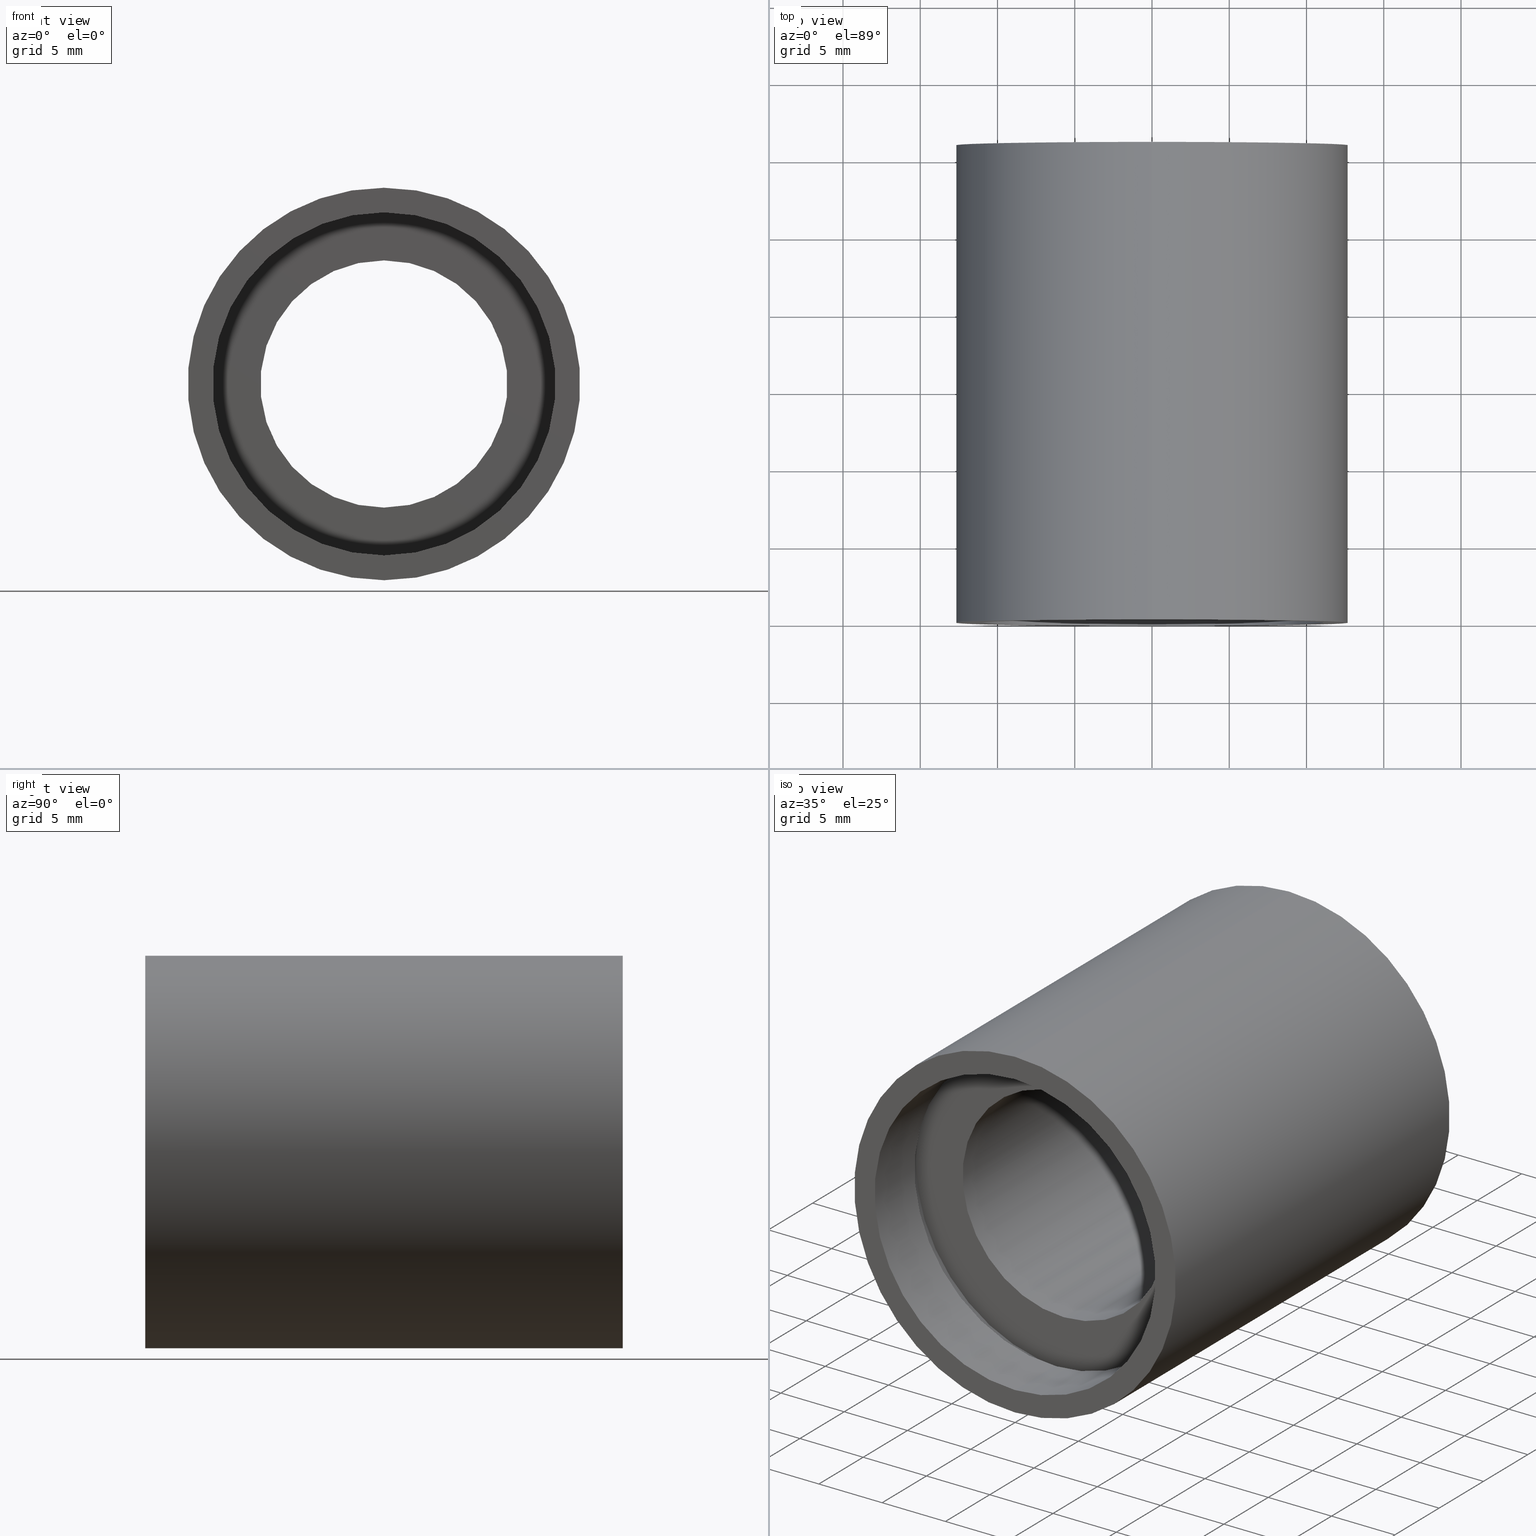
[diagram: canonical four-view strip — front | top / right | iso, engineering-drawing reading convention]
A machine part, canonical four-view strip (front | top / right | iso — engineering-drawing reading convention). The complete STEP part file that produces these views, byte-faithful:
ISO-10303-21;
HEADER;
FILE_DESCRIPTION (( 'STEP AP214' ),
    '1' );
FILE_NAME ('503075.STEP',
    '2019-09-10T05:54:35',
    ( '' ),
    ( '' ),
    'SwSTEP 2.0',
    'SolidWorks 2016',
    '' );
FILE_SCHEMA (( 'AUTOMOTIVE_DESIGN' ));
ENDSEC;

DATA;
#1 = DIRECTION ( 'NONE',  ( -0.0000000000000000000, 1.000000000000000000, -0.0000000000000000000 ) ) ;
#2 = VECTOR ( 'NONE', #29, 1000.000000000000000 ) ;
#3 = FACE_BOUND ( 'NONE', #587, .T. ) ;
#4 =( NAMED_UNIT ( * ) SI_UNIT ( $, .STERADIAN. ) SOLID_ANGLE_UNIT ( ) );
#5 = AXIS2_PLACEMENT_3D ( 'NONE', #8, #202, #201 ) ;
#6 = UNCERTAINTY_MEASURE_WITH_UNIT (LENGTH_MEASURE( 1.000000000000000100E-005 ), #146, 'distance_accuracy_value', 'NONE');
#7 = CARTESIAN_POINT ( 'NONE',  ( 1.420590287010933700E-015, 30.89999999999998400, -11.60000000000003200 ) ) ;
#8 = CARTESIAN_POINT ( 'NONE',  ( 0.0000000000000000000, 5.499999999999976900, 0.0000000000000000000 ) ) ;
#9 = VECTOR ( 'NONE', #421, 1000.000000000000000 ) ;
#10 = PRODUCT_DEFINITION_SHAPE ( 'NONE', 'NONE',  #562 ) ;
#11 = VERTEX_POINT ( 'NONE', #436 ) ;
#12 = DIRECTION ( 'NONE',  ( -0.0000000000000000000, 1.000000000000000000, -0.0000000000000000000 ) ) ;
#13 = AXIS2_PLACEMENT_3D ( 'NONE', #617, #43, #387 ) ;
#14 = VERTEX_POINT ( 'NONE', #394 ) ;
#15 = EDGE_CURVE ( 'NONE', #120, #418, #73, .T. ) ;
#16 = SURFACE_STYLE_USAGE ( .BOTH. , #309 ) ;
#17 = CIRCLE ( 'NONE', #289, 11.10000000000001900 ) ;
#18 = FACE_OUTER_BOUND ( 'NONE', #192, .T. ) ;
#19 = ORIENTED_EDGE ( 'NONE', *, *, #172, .T. ) ;
#20 = CARTESIAN_POINT ( 'NONE',  ( 0.0000000000000000000, 25.39999999999997700, 0.0000000000000000000 ) ) ;
#21 = SURFACE_STYLE_USAGE ( .BOTH. , #363 ) ;
#22 = STYLED_ITEM ( 'NONE', ( #111 ), #140 ) ;
#23 = CIRCLE ( 'NONE', #520, 11.60000000000003200 ) ;
#24 = EDGE_CURVE ( 'NONE', #193, #446, #360, .T. ) ;
#25 = LINE ( 'NONE', #426, #532 ) ;
#26 = EDGE_LOOP ( 'NONE', ( #154, #303 ) ) ;
#27 = ORIENTED_EDGE ( 'NONE', *, *, #461, .F. ) ;
#28 = DIRECTION ( 'NONE',  ( -0.0000000000000000000, 1.000000000000000000, -0.0000000000000000000 ) ) ;
#29 = DIRECTION ( 'NONE',  ( -0.0000000000000000000, 1.000000000000000000, -0.0000000000000000000 ) ) ;
#30 = CARTESIAN_POINT ( 'NONE',  ( 0.0000000000000000000, 161.3761669434274500, 12.70000000000001900 ) ) ;
#31 = ORIENTED_EDGE ( 'NONE', *, *, #408, .F. ) ;
#32 = CARTESIAN_POINT ( 'NONE',  ( 0.0000000000000000000, 161.3761669434274500, 0.0000000000000000000 ) ) ;
#33 = EDGE_LOOP ( 'NONE', ( #354, #132, #494, #181 ) ) ;
#34 = MECHANICAL_DESIGN_GEOMETRIC_PRESENTATION_REPRESENTATION (  '', ( #588 ), #466 ) ;
#35 = ADVANCED_FACE ( 'NONE', ( #273 ), #607, .F. ) ;
#36 = SURFACE_STYLE_USAGE ( .BOTH. , #522 ) ;
#37 = EDGE_LOOP ( 'NONE', ( #62, #430 ) ) ;
#38 = ORIENTED_EDGE ( 'NONE', *, *, #280, .F. ) ;
#39 = CARTESIAN_POINT ( 'NONE',  ( 0.0000000000000000000, 161.3761669434274500, 0.0000000000000000000 ) ) ;
#40 = CLOSED_SHELL ( 'NONE', ( #136, #329, #578, #94, #140, #477, #622, #378, #46, #325, #84, #127, #427, #35, #572, #179, #581, #279 ) ) ;
#41 = DIRECTION ( 'NONE',  ( 0.0000000000000000000, 0.0000000000000000000, 1.000000000000000000 ) ) ;
#42 = STYLED_ITEM ( 'NONE', ( #99 ), #578 ) ;
#43 = DIRECTION ( 'NONE',  ( -0.0000000000000000000, 1.000000000000000000, -0.0000000000000000000 ) ) ;
#44 = EDGE_CURVE ( 'NONE', #446, #193, #23, .T. ) ;
#45 = CIRCLE ( 'NONE', #600, 11.70000000000001500 ) ;
#46 = ADVANCED_FACE ( 'NONE', ( #542, #400 ), #580, .F. ) ;
#47 = DIRECTION ( 'NONE',  ( 0.0000000000000000000, 0.0000000000000000000, 1.000000000000000000 ) ) ;
#48 = DIRECTION ( 'NONE',  ( 0.0000000000000000000, 0.0000000000000000000, 1.000000000000000000 ) ) ;
#49 = ORIENTED_EDGE ( 'NONE', *, *, #480, .F. ) ;
#50 =( NAMED_UNIT ( * ) SI_UNIT ( $, .STERADIAN. ) SOLID_ANGLE_UNIT ( ) );
#51 =( NAMED_UNIT ( * ) PLANE_ANGLE_UNIT ( ) SI_UNIT ( $, .RADIAN. ) );
#52 = DIRECTION ( 'NONE',  ( -0.0000000000000000000, 1.000000000000000000, -0.0000000000000000000 ) ) ;
#53 = ORIENTED_EDGE ( 'NONE', *, *, #118, .T. ) ;
#54 = AXIS2_PLACEMENT_3D ( 'NONE', #157, #357, #115 ) ;
#55 = CIRCLE ( 'NONE', #555, 11.70000000000001700 ) ;
#56 = EDGE_LOOP ( 'NONE', ( #31, #514, #411, #49 ) ) ;
#57 = ORIENTED_EDGE ( 'NONE', *, *, #539, .F. ) ;
#58 = CARTESIAN_POINT ( 'NONE',  ( 0.0000000000000000000, 161.3761669434274500, 0.0000000000000000000 ) ) ;
#59 = DIRECTION ( 'NONE',  ( -0.0000000000000000000, 1.000000000000000000, -0.0000000000000000000 ) ) ;
#60 = DIRECTION ( 'NONE',  ( -0.0000000000000000000, 1.000000000000000000, -0.0000000000000000000 ) ) ;
#61 = CIRCLE ( 'NONE', #397, 11.10000000000002300 ) ;
#62 = ORIENTED_EDGE ( 'NONE', *, *, #252, .F. ) ;
#63 = VECTOR ( 'NONE', #91, 1000.000000000000000 ) ;
#64 = ORIENTED_EDGE ( 'NONE', *, *, #24, .F. ) ;
#65 = AXIS2_PLACEMENT_3D ( 'NONE', #605, #371, #268 ) ;
#66 = VECTOR ( 'NONE', #330, 1000.000000000000000 ) ;
#67 =( NAMED_UNIT ( * ) SI_UNIT ( $, .STERADIAN. ) SOLID_ANGLE_UNIT ( ) );
#68 = VERTEX_POINT ( 'NONE', #478 ) ;
#69 = DIRECTION ( 'NONE',  ( -0.0000000000000000000, 1.000000000000000000, -0.0000000000000000000 ) ) ;
#70 = ORIENTED_EDGE ( 'NONE', *, *, #206, .F. ) ;
#71 = CARTESIAN_POINT ( 'NONE',  ( 0.0000000000000000000, 26.39999999999997700, 0.0000000000000000000 ) ) ;
#72 = CARTESIAN_POINT ( 'NONE',  ( 0.0000000000000000000, 26.39999999999997700, 0.0000000000000000000 ) ) ;
#73 = CIRCLE ( 'NONE', #441, 8.000000000000019500 ) ;
#74 = CARTESIAN_POINT ( 'NONE',  ( 1.555301434917140800E-015, 30.89999999999998400, -12.70000000000001900 ) ) ;
#75 = ORIENTED_EDGE ( 'NONE', *, *, #558, .F. ) ;
#76 = CARTESIAN_POINT ( 'NONE',  ( 0.0000000000000000000, 161.3761669434274500, 11.70000000000001700 ) ) ;
#77 = DIRECTION ( 'NONE',  ( 0.0000000000000000000, 0.0000000000000000000, 1.000000000000000000 ) ) ;
#78 = PRESENTATION_STYLE_ASSIGNMENT (( #423 ) ) ;
#79 = PRESENTATION_LAYER_ASSIGNMENT (  '', '', ( #237 ) ) ;
#80 = CARTESIAN_POINT ( 'NONE',  ( 0.0000000000000000000, -2.775557561562891400E-014, 0.0000000000000000000 ) ) ;
#81 = EDGE_LOOP ( 'NONE', ( #438, #319 ) ) ;
#82 = DIRECTION ( 'NONE',  ( 0.0000000000000000000, -0.0000000000000000000, -1.000000000000000000 ) ) ;
#83 = ORIENTED_EDGE ( 'NONE', *, *, #592, .F. ) ;
#84 = ADVANCED_FACE ( 'NONE', ( #524, #415 ), #281, .F. ) ;
#85 = PRESENTATION_LAYER_ASSIGNMENT (  '', '', ( #588 ) ) ;
#86 = DIRECTION ( 'NONE',  ( 0.0000000000000000000, 0.0000000000000000000, 1.000000000000000000 ) ) ;
#87 = EDGE_CURVE ( 'NONE', #457, #143, #333, .T. ) ;
#88 = COLOUR_RGB ( '',1.000000000000000000, 1.000000000000000000, 1.000000000000000000 ) ;
#89 = CARTESIAN_POINT ( 'NONE',  ( 11.70000000000001700, 5.499999999999987600, 0.0000000000000000000 ) ) ;
#90 = ORIENTED_EDGE ( 'NONE', *, *, #210, .F. ) ;
#91 = DIRECTION ( 'NONE',  ( -0.0000000000000000000, 1.000000000000000000, -0.0000000000000000000 ) ) ;
#92 = ORIENTED_EDGE ( 'NONE', *, *, #523, .T. ) ;
#93 = DIRECTION ( 'NONE',  ( 0.0000000000000000000, 0.0000000000000000000, 1.000000000000000000 ) ) ;
#94 = ADVANCED_FACE ( 'NONE', ( #434 ), #417, .F. ) ;
#95 =( LENGTH_UNIT ( ) NAMED_UNIT ( * ) SI_UNIT ( .MILLI., .METRE. ) );
#96 = DIRECTION ( 'NONE',  ( -0.0000000000000000000, 1.000000000000000000, -0.0000000000000000000 ) ) ;
#97 = CYLINDRICAL_SURFACE ( 'NONE', #147, 11.70000000000001700 ) ;
#98 =( GEOMETRIC_REPRESENTATION_CONTEXT ( 3 ) GLOBAL_UNCERTAINTY_ASSIGNED_CONTEXT ( ( #6 ) ) GLOBAL_UNIT_ASSIGNED_CONTEXT ( ( #146, #51, #398 ) ) REPRESENTATION_CONTEXT ( 'NONE', 'WORKASPACE' ) );
#99 = PRESENTATION_STYLE_ASSIGNMENT (( #36 ) ) ;
#100 = PLANE ( 'NONE',  #448 ) ;
#101 = SURFACE_SIDE_STYLE ('',( #563 ) ) ;
#102 = ORIENTED_EDGE ( 'NONE', *, *, #523, .F. ) ;
#103 = DIRECTION ( 'NONE',  ( 0.0000000000000000000, 0.0000000000000000000, 1.000000000000000000 ) ) ;
#104 = DIRECTION ( 'NONE',  ( 0.0000000000000000000, 0.0000000000000000000, 1.000000000000000000 ) ) ;
#105 = CARTESIAN_POINT ( 'NONE',  ( 0.0000000000000000000, 5.499999999999976900, 11.70000000000001700 ) ) ;
#106 = AXIS2_PLACEMENT_3D ( 'NONE', #222, #313, #266 ) ;
#107 = EDGE_LOOP ( 'NONE', ( #526, #255, #453, #493 ) ) ;
#108 = DIRECTION ( 'NONE',  ( -0.0000000000000000000, 1.000000000000000000, -0.0000000000000000000 ) ) ;
#109 = EDGE_CURVE ( 'NONE', #143, #457, #479, .T. ) ;
#110 = CIRCLE ( 'NONE', #171, 11.70000000000001500 ) ;
#111 = PRESENTATION_STYLE_ASSIGNMENT (( #488 ) ) ;
#112 = DIRECTION ( 'NONE',  ( -0.0000000000000000000, 1.000000000000000000, -0.0000000000000000000 ) ) ;
#113 = EDGE_LOOP ( 'NONE', ( #190, #64 ) ) ;
#114 = FILL_AREA_STYLE ('',( #259 ) ) ;
#115 = DIRECTION ( 'NONE',  ( 0.0000000000000000000, 0.0000000000000000000, 1.000000000000000000 ) ) ;
#116 = MECHANICAL_DESIGN_GEOMETRIC_PRESENTATION_REPRESENTATION (  '', ( #22 ), #267 ) ;
#117 = FACE_OUTER_BOUND ( 'NONE', #81, .T. ) ;
#118 = EDGE_CURVE ( 'NONE', #574, #271, #55, .T. ) ;
#119 = DIRECTION ( 'NONE',  ( 0.0000000000000000000, 0.0000000000000000000, 1.000000000000000000 ) ) ;
#120 = VERTEX_POINT ( 'NONE', #245 ) ;
#121 = ORIENTED_EDGE ( 'NONE', *, *, #618, .F. ) ;
#122 = CARTESIAN_POINT ( 'NONE',  ( 1.420590287010933900E-015, 161.3761669434274500, -11.60000000000003300 ) ) ;
#123 = CARTESIAN_POINT ( 'NONE',  ( 0.0000000000000000000, 4.499999999999976000, 0.0000000000000000000 ) ) ;
#124 = PRESENTATION_LAYER_ASSIGNMENT (  '', '', ( #275 ) ) ;
#125 = CARTESIAN_POINT ( 'NONE',  ( 1.359357947053564500E-015, 161.3761669434274500, -11.10000000000002100 ) ) ;
#126 = CARTESIAN_POINT ( 'NONE',  ( 0.0000000000000000000, 161.3761669434274500, 11.10000000000002100 ) ) ;
#127 = ADVANCED_FACE ( 'NONE', ( #543 ), #276, .F. ) ;
#128 = SURFACE_STYLE_FILL_AREA ( #591 ) ;
#129 =( NAMED_UNIT ( * ) SI_UNIT ( $, .STERADIAN. ) SOLID_ANGLE_UNIT ( ) );
#130 = LINE ( 'NONE', #366, #582 ) ;
#131 = VERTEX_POINT ( 'NONE', #345 ) ;
#132 = ORIENTED_EDGE ( 'NONE', *, *, #326, .T. ) ;
#133 = EDGE_LOOP ( 'NONE', ( #424, #534 ) ) ;
#134 = PRESENTATION_LAYER_ASSIGNMENT (  '', '', ( #42 ) ) ;
#135 = PLANE ( 'NONE',  #405 ) ;
#136 = ADVANCED_FACE ( 'NONE', ( #301 ), #341, .F. ) ;
#137 = DIRECTION ( 'NONE',  ( 0.0000000000000000000, 0.0000000000000000000, 1.000000000000000000 ) ) ;
#138 = DIRECTION ( 'NONE',  ( -0.0000000000000000000, 1.000000000000000000, -0.0000000000000000000 ) ) ;
#139 = CYLINDRICAL_SURFACE ( 'NONE', #513, 12.70000000000001900 ) ;
#140 = ADVANCED_FACE ( 'NONE', ( #211 ), #229, .F. ) ;
#141 = CIRCLE ( 'NONE', #335, 12.70000000000001900 ) ;
#142 = DIRECTION ( 'NONE',  ( 0.0000000000000000000, -0.0000000000000000000, -1.000000000000000000 ) ) ;
#143 = VERTEX_POINT ( 'NONE', #586 ) ;
#144 = SURFACE_SIDE_STYLE ('',( #608 ) ) ;
#145 =( NAMED_UNIT ( * ) SI_UNIT ( $, .STERADIAN. ) SOLID_ANGLE_UNIT ( ) );
#146 =( LENGTH_UNIT ( ) NAMED_UNIT ( * ) SI_UNIT ( .MILLI., .METRE. ) );
#147 = AXIS2_PLACEMENT_3D ( 'NONE', #403, #349, #298 ) ;
#148 = MECHANICAL_DESIGN_GEOMETRIC_PRESENTATION_REPRESENTATION (  '', ( #471 ), #545 ) ;
#149 = PRESENTATION_STYLE_ASSIGNMENT (( #388 ) ) ;
#150 = FACE_OUTER_BOUND ( 'NONE', #312, .T. ) ;
#151 = PRESENTATION_STYLE_ASSIGNMENT (( #247 ) ) ;
#152 = CARTESIAN_POINT ( 'NONE',  ( 1.432836755002405300E-015, 161.3761669434274500, -11.70000000000001500 ) ) ;
#153 = ORIENTED_EDGE ( 'NONE', *, *, #172, .F. ) ;
#154 = ORIENTED_EDGE ( 'NONE', *, *, #315, .T. ) ;
#155 = DIRECTION ( 'NONE',  ( 0.0000000000000000000, 0.0000000000000000000, 1.000000000000000000 ) ) ;
#156 = VECTOR ( 'NONE', #28, 1000.000000000000000 ) ;
#157 = CARTESIAN_POINT ( 'NONE',  ( 0.0000000000000000000, -2.775557561562891400E-014, 0.0000000000000000000 ) ) ;
#158 = VECTOR ( 'NONE', #379, 1000.000000000000000 ) ;
#159 = UNCERTAINTY_MEASURE_WITH_UNIT (LENGTH_MEASURE( 1.000000000000000100E-005 ), #492, 'distance_accuracy_value', 'NONE');
#160 = EDGE_LOOP ( 'NONE', ( #27, #121, #465, #621 ) ) ;
#161 = VERTEX_POINT ( 'NONE', #347 ) ;
#162 = DIRECTION ( 'NONE',  ( -0.0000000000000000000, 1.000000000000000000, -0.0000000000000000000 ) ) ;
#163 = AXIS2_PLACEMENT_3D ( 'NONE', #80, #576, #86 ) ;
#164 = SURFACE_SIDE_STYLE ('',( #212 ) ) ;
#165 = DIRECTION ( 'NONE',  ( 0.0000000000000000000, 0.0000000000000000000, 1.000000000000000000 ) ) ;
#166 = COLOUR_RGB ( '',1.000000000000000000, 1.000000000000000000, 1.000000000000000000 ) ;
#167 = ORIENTED_EDGE ( 'NONE', *, *, #467, .T. ) ;
#168 = EDGE_LOOP ( 'NONE', ( #75, #258, #557, #19 ) ) ;
#169 =( LENGTH_UNIT ( ) NAMED_UNIT ( * ) SI_UNIT ( .MILLI., .METRE. ) );
#170 = CARTESIAN_POINT ( 'NONE',  ( 0.0000000000000000000, 5.499999999999976900, 8.000000000000019500 ) ) ;
#171 = AXIS2_PLACEMENT_3D ( 'NONE', #506, #505, #208 ) ;
#172 = EDGE_CURVE ( 'NONE', #535, #68, #407, .T. ) ;
#173 = DIRECTION ( 'NONE',  ( -0.0000000000000000000, 1.000000000000000000, -0.0000000000000000000 ) ) ;
#174 = ORIENTED_EDGE ( 'NONE', *, *, #420, .F. ) ;
#175 =( NAMED_UNIT ( * ) PLANE_ANGLE_UNIT ( ) SI_UNIT ( $, .RADIAN. ) );
#176 = EDGE_CURVE ( 'NONE', #457, #120, #501, .T. ) ;
#177 = FILL_AREA_STYLE ('',( #615 ) ) ;
#178 = CIRCLE ( 'NONE', #163, 11.10000000000002300 ) ;
#179 = ADVANCED_FACE ( 'NONE', ( #373 ), #97, .F. ) ;
#180 = CARTESIAN_POINT ( 'NONE',  ( 0.0000000000000000000, -2.775557561562891400E-014, 11.10000000000002300 ) ) ;
#181 = ORIENTED_EDGE ( 'NONE', *, *, #467, .F. ) ;
#182 = ORIENTED_EDGE ( 'NONE', *, *, #384, .T. ) ;
#183 =( GEOMETRIC_REPRESENTATION_CONTEXT ( 3 ) GLOBAL_UNCERTAINTY_ASSIGNED_CONTEXT ( ( #270 ) ) GLOBAL_UNIT_ASSIGNED_CONTEXT ( ( #590, #197, #50 ) ) REPRESENTATION_CONTEXT ( 'NONE', 'WORKASPACE' ) );
#184 = AXIS2_PLACEMENT_3D ( 'NONE', #498, #409, #553 ) ;
#185 = DIRECTION ( 'NONE',  ( 0.0000000000000000000, 0.0000000000000000000, 1.000000000000000000 ) ) ;
#186 = DIRECTION ( 'NONE',  ( 0.0000000000000000000, 0.0000000000000000000, 1.000000000000000000 ) ) ;
#187 = DIRECTION ( 'NONE',  ( 0.0000000000000000000, 0.0000000000000000000, 1.000000000000000000 ) ) ;
#188 = CARTESIAN_POINT ( 'NONE',  ( 1.432836755002405300E-015, 26.39999999999997700, -11.70000000000001500 ) ) ;
#189 = CARTESIAN_POINT ( 'NONE',  ( 0.0000000000000000000, 30.89999999999998400, 0.0000000000000000000 ) ) ;
#190 = ORIENTED_EDGE ( 'NONE', *, *, #44, .F. ) ;
#191 = CARTESIAN_POINT ( 'NONE',  ( 1.555301434917140800E-015, -2.775557561562891400E-014, -12.70000000000001900 ) ) ;
#192 = EDGE_LOOP ( 'NONE', ( #38, #204 ) ) ;
#193 = VERTEX_POINT ( 'NONE', #7 ) ;
#194 = FILL_AREA_STYLE ('',( #585 ) ) ;
#195 = CIRCLE ( 'NONE', #13, 11.70000000000001700 ) ;
#196 = MECHANICAL_DESIGN_GEOMETRIC_PRESENTATION_REPRESENTATION (  '', ( #42 ), #410 ) ;
#197 =( NAMED_UNIT ( * ) PLANE_ANGLE_UNIT ( ) SI_UNIT ( $, .RADIAN. ) );
#198 =( NAMED_UNIT ( * ) SI_UNIT ( $, .STERADIAN. ) SOLID_ANGLE_UNIT ( ) );
#199 = EDGE_LOOP ( 'NONE', ( #596, #296, #402, #311 ) ) ;
#200 = DIRECTION ( 'NONE',  ( -0.0000000000000000000, 1.000000000000000000, -0.0000000000000000000 ) ) ;
#201 = DIRECTION ( 'NONE',  ( 0.0000000000000000000, 0.0000000000000000000, 1.000000000000000000 ) ) ;
#202 = DIRECTION ( 'NONE',  ( -0.0000000000000000000, 1.000000000000000000, -0.0000000000000000000 ) ) ;
#203 = AXIS2_PLACEMENT_3D ( 'NONE', #261, #597, #508 ) ;
#204 = ORIENTED_EDGE ( 'NONE', *, *, #598, .F. ) ;
#205 = CIRCLE ( 'NONE', #433, 11.60000000000003300 ) ;
#206 = EDGE_CURVE ( 'NONE', #131, #559, #485, .T. ) ;
#207 = EDGE_LOOP ( 'NONE', ( #70, #238, #231, #215 ) ) ;
#208 = DIRECTION ( 'NONE',  ( 0.0000000000000000000, 0.0000000000000000000, 1.000000000000000000 ) ) ;
#209 = DIRECTION ( 'NONE',  ( 0.0000000000000000000, 0.0000000000000000000, 1.000000000000000000 ) ) ;
#210 = EDGE_CURVE ( 'NONE', #367, #565, #257, .T. ) ;
#211 = FACE_OUTER_BOUND ( 'NONE', #56, .T. ) ;
#212 = SURFACE_STYLE_FILL_AREA ( #114 ) ;
#213 = FILL_AREA_STYLE ('',( #361 ) ) ;
#214 = ORIENTED_EDGE ( 'NONE', *, *, #384, .F. ) ;
#215 = ORIENTED_EDGE ( 'NONE', *, *, #252, .T. ) ;
#216 = FILL_AREA_STYLE ('',( #550 ) ) ;
#217 =( LENGTH_UNIT ( ) NAMED_UNIT ( * ) SI_UNIT ( .MILLI., .METRE. ) );
#218 =( GEOMETRIC_REPRESENTATION_CONTEXT ( 3 ) GLOBAL_UNCERTAINTY_ASSIGNED_CONTEXT ( ( #549 ) ) GLOBAL_UNIT_ASSIGNED_CONTEXT ( ( #217, #355, #406 ) ) REPRESENTATION_CONTEXT ( 'NONE', 'WORKASPACE' ) );
#219 = EDGE_CURVE ( 'NONE', #418, #120, #570, .T. ) ;
#220 = CARTESIAN_POINT ( 'NONE',  ( 0.0000000000000000000, 4.499999999999976000, 11.70000000000001700 ) ) ;
#221 = CIRCLE ( 'NONE', #419, 11.60000000000003300 ) ;
#222 = CARTESIAN_POINT ( 'NONE',  ( 0.0000000000000000000, 161.3761669434274500, 0.0000000000000000000 ) ) ;
#223 = ORIENTED_EDGE ( 'NONE', *, *, #598, .T. ) ;
#224 = CARTESIAN_POINT ( 'NONE',  ( 9.797174393178849300E-016, 25.39999999999997700, -8.000000000000019500 ) ) ;
#225 = CIRCLE ( 'NONE', #575, 11.70000000000001500 ) ;
#226 = MECHANICAL_DESIGN_GEOMETRIC_PRESENTATION_REPRESENTATION (  '', ( #237 ), #455 ) ;
#227 = DIRECTION ( 'NONE',  ( 0.0000000000000000000, 0.0000000000000000000, 1.000000000000000000 ) ) ;
#228 = SURFACE_STYLE_FILL_AREA ( #213 ) ;
#229 = CYLINDRICAL_SURFACE ( 'NONE', #428, 11.60000000000003300 ) ;
#230 = DIRECTION ( 'NONE',  ( 0.0000000000000000000, 0.0000000000000000000, 1.000000000000000000 ) ) ;
#231 = ORIENTED_EDGE ( 'NONE', *, *, #539, .T. ) ;
#232 = MECHANICAL_DESIGN_GEOMETRIC_PRESENTATION_REPRESENTATION (  '', ( #275 ), #314 ) ;
#233 = EDGE_LOOP ( 'NONE', ( #318, #223, #167, #284 ) ) ;
#234 = DIRECTION ( 'NONE',  ( 0.0000000000000000000, 0.0000000000000000000, 1.000000000000000000 ) ) ;
#235 = DIRECTION ( 'NONE',  ( -0.0000000000000000000, 1.000000000000000000, -0.0000000000000000000 ) ) ;
#236 = SURFACE_SIDE_STYLE ('',( #382 ) ) ;
#237 = STYLED_ITEM ( 'NONE', ( #253 ), #518 ) ;
#238 = ORIENTED_EDGE ( 'NONE', *, *, #609, .F. ) ;
#239 = CARTESIAN_POINT ( 'NONE',  ( 0.0000000000000000000, 161.3761669434274500, 0.0000000000000000000 ) ) ;
#240 = CARTESIAN_POINT ( 'NONE',  ( 11.10000000000002300, -1.590039098016662300E-014, 0.0000000000000000000 ) ) ;
#241 = EDGE_CURVE ( 'NONE', #131, #14, #225, .T. ) ;
#242 =( NAMED_UNIT ( * ) PLANE_ANGLE_UNIT ( ) SI_UNIT ( $, .RADIAN. ) );
#243 = CARTESIAN_POINT ( 'NONE',  ( 0.0000000000000000000, 25.39999999999997700, 0.0000000000000000000 ) ) ;
#244 = PRODUCT_CONTEXT ( 'NONE', #246, 'mechanical' ) ;
#245 = CARTESIAN_POINT ( 'NONE',  ( 0.0000000000000000000, 25.39999999999997700, 8.000000000000019500 ) ) ;
#246 = APPLICATION_CONTEXT ( 'automotive_design' ) ;
#247 = SURFACE_STYLE_USAGE ( .BOTH. , #101 ) ;
#248 = PRESENTATION_LAYER_ASSIGNMENT (  '', '', ( #606 ) ) ;
#249 = FACE_OUTER_BOUND ( 'NONE', #233, .T. ) ;
#250 =( NAMED_UNIT ( * ) PLANE_ANGLE_UNIT ( ) SI_UNIT ( $, .RADIAN. ) );
#251 = ORIENTED_EDGE ( 'NONE', *, *, #210, .T. ) ;
#252 = EDGE_CURVE ( 'NONE', #551, #559, #110, .T. ) ;
#253 = PRESENTATION_STYLE_ASSIGNMENT (( #389 ) ) ;
#254 = COLOUR_RGB ( '',1.000000000000000000, 1.000000000000000000, 1.000000000000000000 ) ;
#255 = ORIENTED_EDGE ( 'NONE', *, *, #87, .F. ) ;
#256 = DIRECTION ( 'NONE',  ( 0.0000000000000000000, 0.0000000000000000000, 1.000000000000000000 ) ) ;
#257 = CIRCLE ( 'NONE', #203, 11.70000000000001700 ) ;
#258 = ORIENTED_EDGE ( 'NONE', *, *, #491, .F. ) ;
#259 = FILL_AREA_STYLE_COLOUR ( '', #88 ) ;
#260 = AXIS2_PLACEMENT_3D ( 'NONE', #39, #529, #185 ) ;
#261 = CARTESIAN_POINT ( 'NONE',  ( 0.0000000000000000000, 4.499999999999976000, 0.0000000000000000000 ) ) ;
#262 = CYLINDRICAL_SURFACE ( 'NONE', #348, 11.70000000000001700 ) ;
#263 = SURFACE_STYLE_FILL_AREA ( #177 ) ;
#264 = EDGE_LOOP ( 'NONE', ( #285, #437, #566, #57 ) ) ;
#265 = PLANE ( 'NONE',  #65 ) ;
#266 = DIRECTION ( 'NONE',  ( 0.0000000000000000000, 0.0000000000000000000, 1.000000000000000000 ) ) ;
#267 =( GEOMETRIC_REPRESENTATION_CONTEXT ( 3 ) GLOBAL_UNCERTAINTY_ASSIGNED_CONTEXT ( ( #159 ) ) GLOBAL_UNIT_ASSIGNED_CONTEXT ( ( #492, #250, #198 ) ) REPRESENTATION_CONTEXT ( 'NONE', 'WORKASPACE' ) );
#268 = DIRECTION ( 'NONE',  ( 0.0000000000000000000, -0.0000000000000000000, -1.000000000000000000 ) ) ;
#269 = LINE ( 'NONE', #611, #2 ) ;
#270 = UNCERTAINTY_MEASURE_WITH_UNIT (LENGTH_MEASURE( 1.000000000000000100E-005 ), #590, 'distance_accuracy_value', 'NONE');
#271 = VERTEX_POINT ( 'NONE', #105 ) ;
#272 = CARTESIAN_POINT ( 'NONE',  ( 0.0000000000000000000, 30.89999999999998400, 0.0000000000000000000 ) ) ;
#273 = FACE_OUTER_BOUND ( 'NONE', #107, .T. ) ;
#274 = LINE ( 'NONE', #125, #158 ) ;
#275 = STYLED_ITEM ( 'NONE', ( #78 ), #325 ) ;
#276 = CYLINDRICAL_SURFACE ( 'NONE', #503, 11.70000000000001500 ) ;
#277 = ORIENTED_EDGE ( 'NONE', *, *, #282, .F. ) ;
#278 = EDGE_LOOP ( 'NONE', ( #277, #293, #623, #83 ) ) ;
#279 = ADVANCED_FACE ( 'NONE', ( #385 ), #331, .F. ) ;
#280 = EDGE_CURVE ( 'NONE', #376, #602, #299, .T. ) ;
#281 = PLANE ( 'NONE',  #544 ) ;
#282 = EDGE_CURVE ( 'NONE', #336, #515, #61, .T. ) ;
#283 = FILL_AREA_STYLE ('',( #538 ) ) ;
#284 = ORIENTED_EDGE ( 'NONE', *, *, #579, .F. ) ;
#285 = ORIENTED_EDGE ( 'NONE', *, *, #241, .F. ) ;
#286 = CARTESIAN_POINT ( 'NONE',  ( 0.0000000000000000000, -2.775557561562891400E-014, 0.0000000000000000000 ) ) ;
#287 = DIRECTION ( 'NONE',  ( -0.0000000000000000000, 1.000000000000000000, -0.0000000000000000000 ) ) ;
#288 =( NAMED_UNIT ( * ) PLANE_ANGLE_UNIT ( ) SI_UNIT ( $, .RADIAN. ) );
#289 = AXIS2_PLACEMENT_3D ( 'NONE', #123, #560, #463 ) ;
#290 = APPLICATION_CONTEXT ( 'automotive_design' ) ;
#291 = FILL_AREA_STYLE_COLOUR ( '', #166 ) ;
#292 = EDGE_CURVE ( 'NONE', #565, #367, #484, .T. ) ;
#293 = ORIENTED_EDGE ( 'NONE', *, *, #558, .T. ) ;
#294 = APPLICATION_PROTOCOL_DEFINITION ( 'draft international standard', 'automotive_design', 1998, #290 ) ;
#295 = DIRECTION ( 'NONE',  ( 0.0000000000000000000, 0.0000000000000000000, 1.000000000000000000 ) ) ;
#296 = ORIENTED_EDGE ( 'NONE', *, *, #370, .T. ) ;
#297 = CARTESIAN_POINT ( 'NONE',  ( 0.0000000000000000000, 161.3761669434274500, 0.0000000000000000000 ) ) ;
#298 = DIRECTION ( 'NONE',  ( 0.0000000000000000000, 0.0000000000000000000, 1.000000000000000000 ) ) ;
#299 = CIRCLE ( 'NONE', #54, 12.70000000000001900 ) ;
#300 =( LENGTH_UNIT ( ) NAMED_UNIT ( * ) SI_UNIT ( .MILLI., .METRE. ) );
#301 = FACE_OUTER_BOUND ( 'NONE', #278, .T. ) ;
#302 = SHAPE_DEFINITION_REPRESENTATION ( #10, #518 ) ;
#303 = ORIENTED_EDGE ( 'NONE', *, *, #579, .T. ) ;
#304 = DIRECTION ( 'NONE',  ( -0.0000000000000000000, 1.000000000000000000, -0.0000000000000000000 ) ) ;
#305 = CARTESIAN_POINT ( 'NONE',  ( 0.0000000000000000000, 30.89999999999998400, 0.0000000000000000000 ) ) ;
#306 = COLOUR_RGB ( '',1.000000000000000000, 1.000000000000000000, 1.000000000000000000 ) ;
#307 = CARTESIAN_POINT ( 'NONE',  ( 0.0000000000000000000, -2.775557561562891400E-014, 0.0000000000000000000 ) ) ;
#308 = VECTOR ( 'NONE', #519, 1000.000000000000000 ) ;
#309 = SURFACE_SIDE_STYLE ('',( #469 ) ) ;
#310 = AXIS2_PLACEMENT_3D ( 'NONE', #321, #138, #41 ) ;
#311 = ORIENTED_EDGE ( 'NONE', *, *, #176, .F. ) ;
#312 = EDGE_LOOP ( 'NONE', ( #327, #450 ) ) ;
#313 = DIRECTION ( 'NONE',  ( -0.0000000000000000000, 1.000000000000000000, -0.0000000000000000000 ) ) ;
#314 =( GEOMETRIC_REPRESENTATION_CONTEXT ( 3 ) GLOBAL_UNCERTAINTY_ASSIGNED_CONTEXT ( ( #390 ) ) GLOBAL_UNIT_ASSIGNED_CONTEXT ( ( #169, #175, #320 ) ) REPRESENTATION_CONTEXT ( 'NONE', 'WORKASPACE' ) );
#315 = EDGE_CURVE ( 'NONE', #161, #452, #577, .T. ) ;
#316 = CARTESIAN_POINT ( 'NONE',  ( 0.0000000000000000000, -2.775557561562891400E-014, 12.70000000000001900 ) ) ;
#317 = MANIFOLD_SOLID_BREP ( '��ת1', #40 ) ;
#318 = ORIENTED_EDGE ( 'NONE', *, *, #326, .F. ) ;
#319 = ORIENTED_EDGE ( 'NONE', *, *, #241, .T. ) ;
#320 =( NAMED_UNIT ( * ) SI_UNIT ( $, .STERADIAN. ) SOLID_ANGLE_UNIT ( ) );
#321 = CARTESIAN_POINT ( 'NONE',  ( 0.0000000000000000000, 161.3761669434274500, 0.0000000000000000000 ) ) ;
#322 =( LENGTH_UNIT ( ) NAMED_UNIT ( * ) SI_UNIT ( .MILLI., .METRE. ) );
#323 = FACE_OUTER_BOUND ( 'NONE', #601, .T. ) ;
#324 = AXIS2_PLACEMENT_3D ( 'NONE', #272, #235, #234 ) ;
#325 = ADVANCED_FACE ( 'NONE', ( #342 ), #612, .F. ) ;
#326 = EDGE_CURVE ( 'NONE', #602, #452, #130, .T. ) ;
#327 = ORIENTED_EDGE ( 'NONE', *, *, #531, .F. ) ;
#328 = CARTESIAN_POINT ( 'NONE',  ( 0.0000000000000000000, 26.39999999999997700, 11.60000000000003300 ) ) ;
#329 = ADVANCED_FACE ( 'NONE', ( #323 ), #262, .F. ) ;
#330 = DIRECTION ( 'NONE',  ( -0.0000000000000000000, 1.000000000000000000, -0.0000000000000000000 ) ) ;
#331 = CYLINDRICAL_SURFACE ( 'NONE', #521, 11.10000000000002100 ) ;
#332 = CARTESIAN_POINT ( 'NONE',  ( 11.60000000000003200, 30.89999999999998400, 0.0000000000000000000 ) ) ;
#333 = CIRCLE ( 'NONE', #5, 8.000000000000019500 ) ;
#334 = FACE_BOUND ( 'NONE', #614, .T. ) ;
#335 = AXIS2_PLACEMENT_3D ( 'NONE', #286, #96, #103 ) ;
#336 = VERTEX_POINT ( 'NONE', #364 ) ;
#337 = DIRECTION ( 'NONE',  ( -0.0000000000000000000, 1.000000000000000000, 0.0000000000000000000 ) ) ;
#338 = EDGE_CURVE ( 'NONE', #559, #551, #45, .T. ) ;
#339 = DIRECTION ( 'NONE',  ( -0.0000000000000000000, 1.000000000000000000, -0.0000000000000000000 ) ) ;
#340 = CARTESIAN_POINT ( 'NONE',  ( 0.0000000000000000000, 26.39999999999997700, 0.0000000000000000000 ) ) ;
#341 = CYLINDRICAL_SURFACE ( 'NONE', #536, 11.10000000000002100 ) ;
#342 = FACE_OUTER_BOUND ( 'NONE', #160, .T. ) ;
#343 = PRESENTATION_STYLE_ASSIGNMENT (( #16 ) ) ;
#344 = CARTESIAN_POINT ( 'NONE',  ( 0.0000000000000000000, 25.39999999999997700, 0.0000000000000000000 ) ) ;
#345 = CARTESIAN_POINT ( 'NONE',  ( 1.432836755002405300E-015, 25.39999999999997700, -11.70000000000001500 ) ) ;
#346 = ORIENTED_EDGE ( 'NONE', *, *, #292, .F. ) ;
#347 = CARTESIAN_POINT ( 'NONE',  ( 0.0000000000000000000, 30.89999999999998400, 12.70000000000001900 ) ) ;
#348 = AXIS2_PLACEMENT_3D ( 'NONE', #32, #374, #77 ) ;
#349 = DIRECTION ( 'NONE',  ( -0.0000000000000000000, 1.000000000000000000, -0.0000000000000000000 ) ) ;
#350 = COLOUR_RGB ( '',1.000000000000000000, 1.000000000000000000, 1.000000000000000000 ) ;
#351 = CARTESIAN_POINT ( 'NONE',  ( 0.0000000000000000000, 161.3761669434274500, 8.000000000000019500 ) ) ;
#352 = AXIS2_PLACEMENT_3D ( 'NONE', #332, #391, #142 ) ;
#353 = EDGE_LOOP ( 'NONE', ( #214, #90, #92, #386 ) ) ;
#354 = ORIENTED_EDGE ( 'NONE', *, *, #280, .T. ) ;
#355 =( NAMED_UNIT ( * ) PLANE_ANGLE_UNIT ( ) SI_UNIT ( $, .RADIAN. ) );
#356 = AXIS2_PLACEMENT_3D ( 'NONE', #483, #287, #187 ) ;
#357 = DIRECTION ( 'NONE',  ( -0.0000000000000000000, 1.000000000000000000, -0.0000000000000000000 ) ) ;
#358 = LINE ( 'NONE', #431, #308 ) ;
#359 = CARTESIAN_POINT ( 'NONE',  ( 0.0000000000000000000, 161.3761669434274500, 0.0000000000000000000 ) ) ;
#360 = CIRCLE ( 'NONE', #356, 11.60000000000003200 ) ;
#361 = FILL_AREA_STYLE_COLOUR ( '', #372 ) ;
#362 = MECHANICAL_DESIGN_GEOMETRIC_PRESENTATION_REPRESENTATION (  '', ( #606 ), #218 ) ;
#363 = SURFACE_SIDE_STYLE ('',( #228 ) ) ;
#364 = CARTESIAN_POINT ( 'NONE',  ( 1.359357947053564900E-015, -2.775557561562891400E-014, -11.10000000000002300 ) ) ;
#365 = VECTOR ( 'NONE', #462, 1000.000000000000000 ) ;
#366 = CARTESIAN_POINT ( 'NONE',  ( 1.555301434917140800E-015, 161.3761669434274500, -12.70000000000001900 ) ) ;
#367 = VERTEX_POINT ( 'NONE', #220 ) ;
#368 = DIRECTION ( 'NONE',  ( -0.0000000000000000000, 1.000000000000000000, -0.0000000000000000000 ) ) ;
#369 = AXIS2_PLACEMENT_3D ( 'NONE', #344, #533, #540 ) ;
#370 = EDGE_CURVE ( 'NONE', #143, #418, #269, .T. ) ;
#371 = DIRECTION ( 'NONE',  ( 0.0000000000000000000, -1.000000000000000000, 0.0000000000000000000 ) ) ;
#372 = COLOUR_RGB ( '',1.000000000000000000, 1.000000000000000000, 1.000000000000000000 ) ;
#373 = FACE_OUTER_BOUND ( 'NONE', #353, .T. ) ;
#374 = DIRECTION ( 'NONE',  ( -0.0000000000000000000, 1.000000000000000000, -0.0000000000000000000 ) ) ;
#375 = CARTESIAN_POINT ( 'NONE',  ( 11.10000000000001900, 4.499999999999983100, 0.0000000000000000000 ) ) ;
#376 = VERTEX_POINT ( 'NONE', #316 ) ;
#377 = DIRECTION ( 'NONE',  ( -0.0000000000000000000, 1.000000000000000000, -0.0000000000000000000 ) ) ;
#378 = ADVANCED_FACE ( 'NONE', ( #249 ), #139, .T. ) ;
#379 = DIRECTION ( 'NONE',  ( -0.0000000000000000000, 1.000000000000000000, -0.0000000000000000000 ) ) ;
#380 = LINE ( 'NONE', #122, #365 ) ;
#381 = AXIS2_PLACEMENT_3D ( 'NONE', #458, #599, #119 ) ;
#382 = SURFACE_STYLE_FILL_AREA ( #283 ) ;
#383 = CIRCLE ( 'NONE', #369, 11.70000000000001500 ) ;
#384 = EDGE_CURVE ( 'NONE', #565, #574, #620, .T. ) ;
#385 = FACE_OUTER_BOUND ( 'NONE', #168, .T. ) ;
#386 = ORIENTED_EDGE ( 'NONE', *, *, #531, .T. ) ;
#387 = DIRECTION ( 'NONE',  ( 0.0000000000000000000, 0.0000000000000000000, 1.000000000000000000 ) ) ;
#388 = SURFACE_STYLE_USAGE ( .BOTH. , #236 ) ;
#389 = SURFACE_STYLE_USAGE ( .BOTH. , #144 ) ;
#390 = UNCERTAINTY_MEASURE_WITH_UNIT (LENGTH_MEASURE( 1.000000000000000100E-005 ), #169, 'distance_accuracy_value', 'NONE');
#391 = DIRECTION ( 'NONE',  ( 0.0000000000000000000, -1.000000000000000000, 0.0000000000000000000 ) ) ;
#392 = PRODUCT_DEFINITION_FORMATION_WITH_SPECIFIED_SOURCE ( '�κ�', '', #451, .NOT_KNOWN. ) ;
#393 = DIRECTION ( 'NONE',  ( 0.0000000000000000000, 0.0000000000000000000, 1.000000000000000000 ) ) ;
#394 = CARTESIAN_POINT ( 'NONE',  ( 0.0000000000000000000, 25.39999999999997700, 11.70000000000001500 ) ) ;
#395 = CARTESIAN_POINT ( 'NONE',  ( 0.0000000000000000000, 0.0000000000000000000, 0.0000000000000000000 ) ) ;
#396 = CARTESIAN_POINT ( 'NONE',  ( 0.0000000000000000000, 161.3761669434274500, 0.0000000000000000000 ) ) ;
#397 = AXIS2_PLACEMENT_3D ( 'NONE', #307, #304, #554 ) ;
#398 =( NAMED_UNIT ( * ) SI_UNIT ( $, .STERADIAN. ) SOLID_ANGLE_UNIT ( ) );
#399 = FILL_AREA_STYLE_COLOUR ( '', #306 ) ;
#400 = FACE_OUTER_BOUND ( 'NONE', #26, .T. ) ;
#401 = FACE_OUTER_BOUND ( 'NONE', #199, .T. ) ;
#402 = ORIENTED_EDGE ( 'NONE', *, *, #219, .T. ) ;
#403 = CARTESIAN_POINT ( 'NONE',  ( 0.0000000000000000000, 161.3761669434274500, 0.0000000000000000000 ) ) ;
#404 = CARTESIAN_POINT ( 'NONE',  ( 0.0000000000000000000, 5.499999999999976900, 0.0000000000000000000 ) ) ;
#405 = AXIS2_PLACEMENT_3D ( 'NONE', #375, #573, #82 ) ;
#406 =( NAMED_UNIT ( * ) SI_UNIT ( $, .STERADIAN. ) SOLID_ANGLE_UNIT ( ) );
#407 = CIRCLE ( 'NONE', #474, 11.10000000000001900 ) ;
#408 = EDGE_CURVE ( 'NONE', #11, #556, #221, .T. ) ;
#409 = DIRECTION ( 'NONE',  ( -0.0000000000000000000, 1.000000000000000000, -0.0000000000000000000 ) ) ;
#410 =( GEOMETRIC_REPRESENTATION_CONTEXT ( 3 ) GLOBAL_UNCERTAINTY_ASSIGNED_CONTEXT ( ( #456 ) ) GLOBAL_UNIT_ASSIGNED_CONTEXT ( ( #322, #429, #129 ) ) REPRESENTATION_CONTEXT ( 'NONE', 'WORKASPACE' ) );
#411 = ORIENTED_EDGE ( 'NONE', *, *, #24, .T. ) ;
#412 = DIRECTION ( 'NONE',  ( -0.0000000000000000000, 1.000000000000000000, -0.0000000000000000000 ) ) ;
#413 = UNCERTAINTY_MEASURE_WITH_UNIT (LENGTH_MEASURE( 1.000000000000000100E-005 ), #537, 'distance_accuracy_value', 'NONE');
#414 =( NAMED_UNIT ( * ) PLANE_ANGLE_UNIT ( ) SI_UNIT ( $, .RADIAN. ) );
#415 = FACE_BOUND ( 'NONE', #481, .T. ) ;
#416 = COLOUR_RGB ( '',1.000000000000000000, 1.000000000000000000, 1.000000000000000000 ) ;
#417 = CYLINDRICAL_SURFACE ( 'NONE', #440, 11.70000000000001500 ) ;
#418 = VERTEX_POINT ( 'NONE', #224 ) ;
#419 = AXIS2_PLACEMENT_3D ( 'NONE', #71, #517, #230 ) ;
#420 = EDGE_CURVE ( 'NONE', #68, #535, #17, .T. ) ;
#421 = DIRECTION ( 'NONE',  ( -0.0000000000000000000, 1.000000000000000000, -0.0000000000000000000 ) ) ;
#422 = VECTOR ( 'NONE', #490, 1000.000000000000000 ) ;
#423 = SURFACE_STYLE_USAGE ( .BOTH. , #164 ) ;
#424 = ORIENTED_EDGE ( 'NONE', *, *, #15, .F. ) ;
#425 = CARTESIAN_POINT ( 'NONE',  ( 1.432836755002405500E-015, 161.3761669434274500, -11.70000000000001700 ) ) ;
#426 = CARTESIAN_POINT ( 'NONE',  ( 0.0000000000000000000, 161.3761669434274500, 11.70000000000001500 ) ) ;
#427 = ADVANCED_FACE ( 'NONE', ( #500, #117 ), #265, .F. ) ;
#428 = AXIS2_PLACEMENT_3D ( 'NONE', #396, #108, #444 ) ;
#429 =( NAMED_UNIT ( * ) PLANE_ANGLE_UNIT ( ) SI_UNIT ( $, .RADIAN. ) );
#430 = ORIENTED_EDGE ( 'NONE', *, *, #338, .F. ) ;
#431 = CARTESIAN_POINT ( 'NONE',  ( 0.0000000000000000000, 161.3761669434274500, 11.60000000000003300 ) ) ;
#432 = DIRECTION ( 'NONE',  ( 0.0000000000000000000, 0.0000000000000000000, 1.000000000000000000 ) ) ;
#433 = AXIS2_PLACEMENT_3D ( 'NONE', #340, #1, #48 ) ;
#434 = FACE_OUTER_BOUND ( 'NONE', #264, .T. ) ;
#435 = UNCERTAINTY_MEASURE_WITH_UNIT (LENGTH_MEASURE( 1.000000000000000100E-005 ), #300, 'distance_accuracy_value', 'NONE');
#436 = CARTESIAN_POINT ( 'NONE',  ( 1.420590287010933900E-015, 26.39999999999997700, -11.60000000000003300 ) ) ;
#437 = ORIENTED_EDGE ( 'NONE', *, *, #206, .T. ) ;
#438 = ORIENTED_EDGE ( 'NONE', *, *, #609, .T. ) ;
#439 = DIRECTION ( 'NONE',  ( 0.0000000000000000000, 0.0000000000000000000, 1.000000000000000000 ) ) ;
#440 = AXIS2_PLACEMENT_3D ( 'NONE', #239, #482, #439 ) ;
#441 = AXIS2_PLACEMENT_3D ( 'NONE', #243, #584, #137 ) ;
#442 = LINE ( 'NONE', #76, #66 ) ;
#443 = APPLICATION_PROTOCOL_DEFINITION ( 'draft international standard', 'automotive_design', 1998, #246 ) ;
#444 = DIRECTION ( 'NONE',  ( 0.0000000000000000000, 0.0000000000000000000, 1.000000000000000000 ) ) ;
#445 = DIRECTION ( 'NONE',  ( -0.0000000000000000000, 1.000000000000000000, 0.0000000000000000000 ) ) ;
#446 = VERTEX_POINT ( 'NONE', #568 ) ;
#447 = EDGE_LOOP ( 'NONE', ( #251, #460 ) ) ;
#448 = AXIS2_PLACEMENT_3D ( 'NONE', #240, #445, #93 ) ;
#449 = MECHANICAL_DESIGN_GEOMETRIC_PRESENTATION_REPRESENTATION (  '', ( #497 ), #98 ) ;
#450 = ORIENTED_EDGE ( 'NONE', *, *, #118, .F. ) ;
#451 = PRODUCT ( '503075', '503075', '', ( #244 ) ) ;
#452 = VERTEX_POINT ( 'NONE', #74 ) ;
#453 = ORIENTED_EDGE ( 'NONE', *, *, #176, .T. ) ;
#454 = DIRECTION ( 'NONE',  ( 0.0000000000000000000, 0.0000000000000000000, 1.000000000000000000 ) ) ;
#455 =( GEOMETRIC_REPRESENTATION_CONTEXT ( 3 ) GLOBAL_UNCERTAINTY_ASSIGNED_CONTEXT ( ( #413 ) ) GLOBAL_UNIT_ASSIGNED_CONTEXT ( ( #537, #242, #145 ) ) REPRESENTATION_CONTEXT ( 'NONE', 'WORKASPACE' ) );
#456 = UNCERTAINTY_MEASURE_WITH_UNIT (LENGTH_MEASURE( 1.000000000000000100E-005 ), #322, 'distance_accuracy_value', 'NONE');
#457 = VERTEX_POINT ( 'NONE', #170 ) ;
#458 = CARTESIAN_POINT ( 'NONE',  ( 0.0000000000000000000, 161.3761669434274500, 0.0000000000000000000 ) ) ;
#459 = AXIS2_PLACEMENT_3D ( 'NONE', #502, #112, #209 ) ;
#460 = ORIENTED_EDGE ( 'NONE', *, *, #292, .T. ) ;
#461 = EDGE_CURVE ( 'NONE', #11, #193, #380, .T. ) ;
#462 = DIRECTION ( 'NONE',  ( -0.0000000000000000000, 1.000000000000000000, -0.0000000000000000000 ) ) ;
#463 = DIRECTION ( 'NONE',  ( 0.0000000000000000000, 0.0000000000000000000, 1.000000000000000000 ) ) ;
#464 = CYLINDRICAL_SURFACE ( 'NONE', #260, 8.000000000000019500 ) ;
#465 = ORIENTED_EDGE ( 'NONE', *, *, #480, .T. ) ;
#466 =( GEOMETRIC_REPRESENTATION_CONTEXT ( 3 ) GLOBAL_UNCERTAINTY_ASSIGNED_CONTEXT ( ( #435 ) ) GLOBAL_UNIT_ASSIGNED_CONTEXT ( ( #300, #414, #67 ) ) REPRESENTATION_CONTEXT ( 'NONE', 'WORKASPACE' ) );
#467 = EDGE_CURVE ( 'NONE', #376, #161, #476, .T. ) ;
#468 = AXIS2_PLACEMENT_3D ( 'NONE', #546, #200, #104 ) ;
#469 = SURFACE_STYLE_FILL_AREA ( #216 ) ;
#470 = CARTESIAN_POINT ( 'NONE',  ( 1.432836755002405500E-015, 4.499999999999976000, -11.70000000000001700 ) ) ;
#471 = STYLED_ITEM ( 'NONE', ( #149 ), #35 ) ;
#472 = ORIENTED_EDGE ( 'NONE', *, *, #491, .T. ) ;
#473 = AXIS2_PLACEMENT_3D ( 'NONE', #395, #393, #583 ) ;
#474 = AXIS2_PLACEMENT_3D ( 'NONE', #593, #12, #155 ) ;
#475 = CARTESIAN_POINT ( 'NONE',  ( 0.0000000000000000000, 4.499999999999976000, 11.10000000000001900 ) ) ;
#476 = LINE ( 'NONE', #30, #156 ) ;
#477 = ADVANCED_FACE ( 'NONE', ( #548 ), #569, .T. ) ;
#478 = CARTESIAN_POINT ( 'NONE',  ( 1.359357947053564500E-015, 4.499999999999976000, -11.10000000000001900 ) ) ;
#479 = CIRCLE ( 'NONE', #468, 8.000000000000019500 ) ;
#480 = EDGE_CURVE ( 'NONE', #556, #446, #358, .T. ) ;
#481 = EDGE_LOOP ( 'NONE', ( #610, #510 ) ) ;
#482 = DIRECTION ( 'NONE',  ( -0.0000000000000000000, 1.000000000000000000, -0.0000000000000000000 ) ) ;
#483 = CARTESIAN_POINT ( 'NONE',  ( 0.0000000000000000000, 30.89999999999998400, 0.0000000000000000000 ) ) ;
#484 = CIRCLE ( 'NONE', #184, 11.70000000000001700 ) ;
#485 = LINE ( 'NONE', #152, #516 ) ;
#486 = COLOUR_RGB ( '',1.000000000000000000, 1.000000000000000000, 1.000000000000000000 ) ;
#487 = ORIENTED_EDGE ( 'NONE', *, *, #87, .T. ) ;
#488 = SURFACE_STYLE_USAGE ( .BOTH. , #594 ) ;
#489 = PRESENTATION_LAYER_ASSIGNMENT (  '', '', ( #22 ) ) ;
#490 = DIRECTION ( 'NONE',  ( -0.0000000000000000000, 1.000000000000000000, -0.0000000000000000000 ) ) ;
#491 = EDGE_CURVE ( 'NONE', #515, #336, #178, .T. ) ;
#492 =( LENGTH_UNIT ( ) NAMED_UNIT ( * ) SI_UNIT ( .MILLI., .METRE. ) );
#493 = ORIENTED_EDGE ( 'NONE', *, *, #15, .T. ) ;
#494 = ORIENTED_EDGE ( 'NONE', *, *, #315, .F. ) ;
#495 = DIRECTION ( 'NONE',  ( -0.0000000000000000000, 1.000000000000000000, -0.0000000000000000000 ) ) ;
#496 = PRODUCT_RELATED_PRODUCT_CATEGORY ( 'part', '', ( #451 ) ) ;
#497 = STYLED_ITEM ( 'NONE', ( #151 ), #136 ) ;
#498 = CARTESIAN_POINT ( 'NONE',  ( 0.0000000000000000000, 4.499999999999976000, 0.0000000000000000000 ) ) ;
#499 = UNCERTAINTY_MEASURE_WITH_UNIT (LENGTH_MEASURE( 1.000000000000000100E-005 ), #95, 'distance_accuracy_value', 'NONE');
#500 = FACE_BOUND ( 'NONE', #133, .T. ) ;
#501 = LINE ( 'NONE', #351, #422 ) ;
#502 = CARTESIAN_POINT ( 'NONE',  ( 0.0000000000000000000, 25.39999999999997700, 0.0000000000000000000 ) ) ;
#503 = AXIS2_PLACEMENT_3D ( 'NONE', #297, #495, #295 ) ;
#504 = EDGE_LOOP ( 'NONE', ( #487, #528 ) ) ;
#505 = DIRECTION ( 'NONE',  ( -0.0000000000000000000, 1.000000000000000000, -0.0000000000000000000 ) ) ;
#506 = CARTESIAN_POINT ( 'NONE',  ( 0.0000000000000000000, 26.39999999999997700, 0.0000000000000000000 ) ) ;
#507 = PRODUCT_DEFINITION_CONTEXT ( 'detailed design', #290, 'design' ) ;
#508 = DIRECTION ( 'NONE',  ( 0.0000000000000000000, 0.0000000000000000000, 1.000000000000000000 ) ) ;
#509 = PRESENTATION_STYLE_ASSIGNMENT (( #21 ) ) ;
#510 = ORIENTED_EDGE ( 'NONE', *, *, #408, .T. ) ;
#511 = LINE ( 'NONE', #126, #63 ) ;
#512 = CARTESIAN_POINT ( 'NONE',  ( 0.0000000000000000000, 161.3761669434274500, 0.0000000000000000000 ) ) ;
#513 = AXIS2_PLACEMENT_3D ( 'NONE', #512, #368, #604 ) ;
#514 = ORIENTED_EDGE ( 'NONE', *, *, #461, .T. ) ;
#515 = VERTEX_POINT ( 'NONE', #180 ) ;
#516 = VECTOR ( 'NONE', #60, 1000.000000000000000 ) ;
#517 = DIRECTION ( 'NONE',  ( -0.0000000000000000000, 1.000000000000000000, -0.0000000000000000000 ) ) ;
#518 = ADVANCED_BREP_SHAPE_REPRESENTATION ( '503075', ( #317, #473 ), #183 ) ;
#519 = DIRECTION ( 'NONE',  ( -0.0000000000000000000, 1.000000000000000000, -0.0000000000000000000 ) ) ;
#520 = AXIS2_PLACEMENT_3D ( 'NONE', #189, #339, #432 ) ;
#521 = AXIS2_PLACEMENT_3D ( 'NONE', #359, #162, #454 ) ;
#522 = SURFACE_SIDE_STYLE ('',( #263 ) ) ;
#523 = EDGE_CURVE ( 'NONE', #367, #271, #442, .T. ) ;
#524 = FACE_OUTER_BOUND ( 'NONE', #37, .T. ) ;
#525 = FACE_BOUND ( 'NONE', #504, .T. ) ;
#526 = ORIENTED_EDGE ( 'NONE', *, *, #370, .F. ) ;
#527 = CARTESIAN_POINT ( 'NONE',  ( 1.432836755002405500E-015, 5.499999999999976900, -11.70000000000001700 ) ) ;
#528 = ORIENTED_EDGE ( 'NONE', *, *, #109, .T. ) ;
#529 = DIRECTION ( 'NONE',  ( -0.0000000000000000000, 1.000000000000000000, -0.0000000000000000000 ) ) ;
#530 = AXIS2_PLACEMENT_3D ( 'NONE', #89, #619, #186 ) ;
#531 = EDGE_CURVE ( 'NONE', #271, #574, #195, .T. ) ;
#532 = VECTOR ( 'NONE', #377, 1000.000000000000000 ) ;
#533 = DIRECTION ( 'NONE',  ( -0.0000000000000000000, 1.000000000000000000, -0.0000000000000000000 ) ) ;
#534 = ORIENTED_EDGE ( 'NONE', *, *, #219, .F. ) ;
#535 = VERTEX_POINT ( 'NONE', #475 ) ;
#536 = AXIS2_PLACEMENT_3D ( 'NONE', #58, #59, #256 ) ;
#537 =( LENGTH_UNIT ( ) NAMED_UNIT ( * ) SI_UNIT ( .MILLI., .METRE. ) );
#538 = FILL_AREA_STYLE_COLOUR ( '', #350 ) ;
#539 = EDGE_CURVE ( 'NONE', #14, #551, #25, .T. ) ;
#540 = DIRECTION ( 'NONE',  ( 0.0000000000000000000, 0.0000000000000000000, 1.000000000000000000 ) ) ;
#541 = DIRECTION ( 'NONE',  ( 0.0000000000000000000, 0.0000000000000000000, 1.000000000000000000 ) ) ;
#542 = FACE_BOUND ( 'NONE', #113, .T. ) ;
#543 = FACE_OUTER_BOUND ( 'NONE', #207, .T. ) ;
#544 = AXIS2_PLACEMENT_3D ( 'NONE', #624, #337, #47 ) ;
#545 =( GEOMETRIC_REPRESENTATION_CONTEXT ( 3 ) GLOBAL_UNCERTAINTY_ASSIGNED_CONTEXT ( ( #499 ) ) GLOBAL_UNIT_ASSIGNED_CONTEXT ( ( #95, #288, #4 ) ) REPRESENTATION_CONTEXT ( 'NONE', 'WORKASPACE' ) );
#546 = CARTESIAN_POINT ( 'NONE',  ( 0.0000000000000000000, 5.499999999999976900, 0.0000000000000000000 ) ) ;
#547 = FILL_AREA_STYLE ('',( #291 ) ) ;
#548 = FACE_OUTER_BOUND ( 'NONE', #33, .T. ) ;
#549 = UNCERTAINTY_MEASURE_WITH_UNIT (LENGTH_MEASURE( 1.000000000000000100E-005 ), #217, 'distance_accuracy_value', 'NONE');
#550 = FILL_AREA_STYLE_COLOUR ( '', #254 ) ;
#551 = VERTEX_POINT ( 'NONE', #613 ) ;
#552 = ORIENTED_EDGE ( 'NONE', *, *, #282, .T. ) ;
#553 = DIRECTION ( 'NONE',  ( 0.0000000000000000000, 0.0000000000000000000, 1.000000000000000000 ) ) ;
#554 = DIRECTION ( 'NONE',  ( 0.0000000000000000000, 0.0000000000000000000, 1.000000000000000000 ) ) ;
#555 = AXIS2_PLACEMENT_3D ( 'NONE', #404, #52, #541 ) ;
#556 = VERTEX_POINT ( 'NONE', #328 ) ;
#557 = ORIENTED_EDGE ( 'NONE', *, *, #592, .T. ) ;
#558 = EDGE_CURVE ( 'NONE', #336, #68, #274, .T. ) ;
#559 = VERTEX_POINT ( 'NONE', #188 ) ;
#560 = DIRECTION ( 'NONE',  ( -0.0000000000000000000, 1.000000000000000000, -0.0000000000000000000 ) ) ;
#561 = DIRECTION ( 'NONE',  ( -0.0000000000000000000, 1.000000000000000000, -0.0000000000000000000 ) ) ;
#562 = PRODUCT_DEFINITION ( 'δ֪', '', #392, #507 ) ;
#563 = SURFACE_STYLE_FILL_AREA ( #547 ) ;
#564 = CIRCLE ( 'NONE', #324, 12.70000000000001900 ) ;
#565 = VERTEX_POINT ( 'NONE', #470 ) ;
#566 = ORIENTED_EDGE ( 'NONE', *, *, #338, .T. ) ;
#567 = AXIS2_PLACEMENT_3D ( 'NONE', #305, #412, #165 ) ;
#568 = CARTESIAN_POINT ( 'NONE',  ( 0.0000000000000000000, 30.89999999999998400, 11.60000000000003200 ) ) ;
#569 = CYLINDRICAL_SURFACE ( 'NONE', #106, 12.70000000000001900 ) ;
#570 = CIRCLE ( 'NONE', #459, 8.000000000000019500 ) ;
#571 = PLANE ( 'NONE',  #530 ) ;
#572 = ADVANCED_FACE ( 'NONE', ( #150, #525 ), #571, .F. ) ;
#573 = DIRECTION ( 'NONE',  ( 0.0000000000000000000, -1.000000000000000000, 0.0000000000000000000 ) ) ;
#574 = VERTEX_POINT ( 'NONE', #527 ) ;
#575 = AXIS2_PLACEMENT_3D ( 'NONE', #20, #69, #603 ) ;
#576 = DIRECTION ( 'NONE',  ( -0.0000000000000000000, 1.000000000000000000, -0.0000000000000000000 ) ) ;
#577 = CIRCLE ( 'NONE', #567, 12.70000000000001900 ) ;
#578 = ADVANCED_FACE ( 'NONE', ( #401 ), #464, .F. ) ;
#579 = EDGE_CURVE ( 'NONE', #452, #161, #564, .T. ) ;
#580 = PLANE ( 'NONE',  #352 ) ;
#581 = ADVANCED_FACE ( 'NONE', ( #334, #595 ), #135, .F. ) ;
#582 = VECTOR ( 'NONE', #173, 1000.000000000000000 ) ;
#583 = DIRECTION ( 'NONE',  ( 1.000000000000000000, 0.0000000000000000000, 0.0000000000000000000 ) ) ;
#584 = DIRECTION ( 'NONE',  ( -0.0000000000000000000, 1.000000000000000000, -0.0000000000000000000 ) ) ;
#585 = FILL_AREA_STYLE_COLOUR ( '', #486 ) ;
#586 = CARTESIAN_POINT ( 'NONE',  ( 9.797174393178849300E-016, 5.499999999999976900, -8.000000000000019500 ) ) ;
#587 = EDGE_LOOP ( 'NONE', ( #472, #552 ) ) ;
#588 = STYLED_ITEM ( 'NONE', ( #509 ), #317 ) ;
#589 = PRESENTATION_LAYER_ASSIGNMENT (  '', '', ( #471 ) ) ;
#590 =( LENGTH_UNIT ( ) NAMED_UNIT ( * ) SI_UNIT ( .MILLI., .METRE. ) );
#591 = FILL_AREA_STYLE ('',( #399 ) ) ;
#592 = EDGE_CURVE ( 'NONE', #515, #535, #511, .T. ) ;
#593 = CARTESIAN_POINT ( 'NONE',  ( 0.0000000000000000000, 4.499999999999976000, 0.0000000000000000000 ) ) ;
#594 = SURFACE_SIDE_STYLE ('',( #128 ) ) ;
#595 = FACE_OUTER_BOUND ( 'NONE', #447, .T. ) ;
#596 = ORIENTED_EDGE ( 'NONE', *, *, #109, .F. ) ;
#597 = DIRECTION ( 'NONE',  ( -0.0000000000000000000, 1.000000000000000000, -0.0000000000000000000 ) ) ;
#598 = EDGE_CURVE ( 'NONE', #602, #376, #141, .T. ) ;
#599 = DIRECTION ( 'NONE',  ( -0.0000000000000000000, 1.000000000000000000, -0.0000000000000000000 ) ) ;
#600 = AXIS2_PLACEMENT_3D ( 'NONE', #72, #561, #227 ) ;
#601 = EDGE_LOOP ( 'NONE', ( #346, #182, #53, #102 ) ) ;
#602 = VERTEX_POINT ( 'NONE', #191 ) ;
#603 = DIRECTION ( 'NONE',  ( 0.0000000000000000000, 0.0000000000000000000, 1.000000000000000000 ) ) ;
#604 = DIRECTION ( 'NONE',  ( 0.0000000000000000000, 0.0000000000000000000, 1.000000000000000000 ) ) ;
#605 = CARTESIAN_POINT ( 'NONE',  ( 8.000000000000019500, 25.39999999999997700, 0.0000000000000000000 ) ) ;
#606 = STYLED_ITEM ( 'NONE', ( #343 ), #279 ) ;
#607 = CYLINDRICAL_SURFACE ( 'NONE', #310, 8.000000000000019500 ) ;
#608 = SURFACE_STYLE_FILL_AREA ( #194 ) ;
#609 = EDGE_CURVE ( 'NONE', #14, #131, #383, .T. ) ;
#610 = ORIENTED_EDGE ( 'NONE', *, *, #618, .T. ) ;
#611 = CARTESIAN_POINT ( 'NONE',  ( 9.797174393178849300E-016, 161.3761669434274500, -8.000000000000019500 ) ) ;
#612 = CYLINDRICAL_SURFACE ( 'NONE', #381, 11.60000000000003300 ) ;
#613 = CARTESIAN_POINT ( 'NONE',  ( 0.0000000000000000000, 26.39999999999997700, 11.70000000000001500 ) ) ;
#614 = EDGE_LOOP ( 'NONE', ( #153, #174 ) ) ;
#615 = FILL_AREA_STYLE_COLOUR ( '', #416 ) ;
#616 = PRESENTATION_LAYER_ASSIGNMENT (  '', '', ( #497 ) ) ;
#617 = CARTESIAN_POINT ( 'NONE',  ( 0.0000000000000000000, 5.499999999999976900, 0.0000000000000000000 ) ) ;
#618 = EDGE_CURVE ( 'NONE', #556, #11, #205, .T. ) ;
#619 = DIRECTION ( 'NONE',  ( -0.0000000000000000000, 1.000000000000000000, 0.0000000000000000000 ) ) ;
#620 = LINE ( 'NONE', #425, #9 ) ;
#621 = ORIENTED_EDGE ( 'NONE', *, *, #44, .T. ) ;
#622 = ADVANCED_FACE ( 'NONE', ( #18, #3 ), #100, .F. ) ;
#623 = ORIENTED_EDGE ( 'NONE', *, *, #420, .T. ) ;
#624 = CARTESIAN_POINT ( 'NONE',  ( 11.60000000000003300, 26.39999999999997700, 0.0000000000000000000 ) ) ;
ENDSEC;
END-ISO-10303-21;
